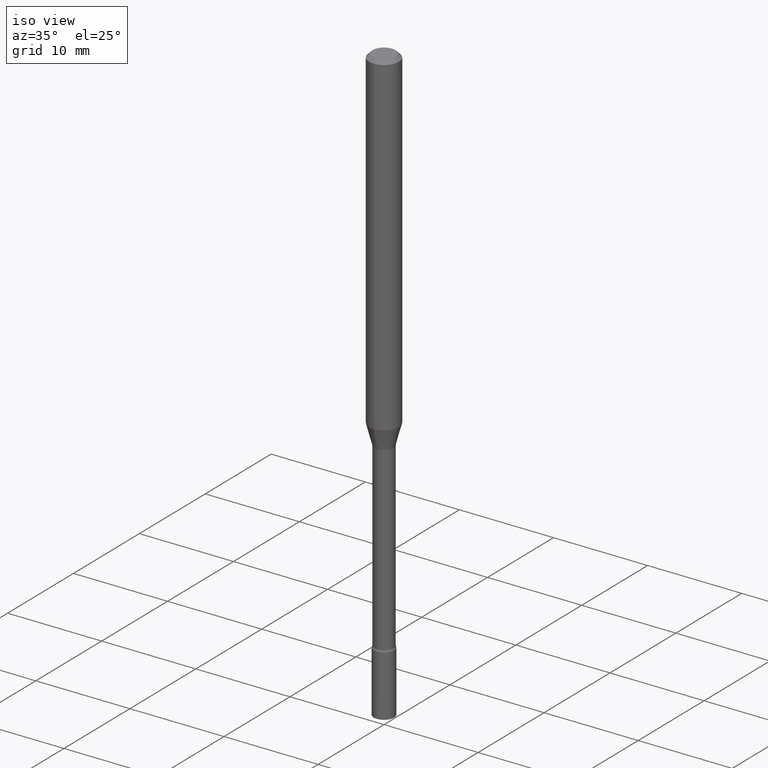
[diagram: clean part render]
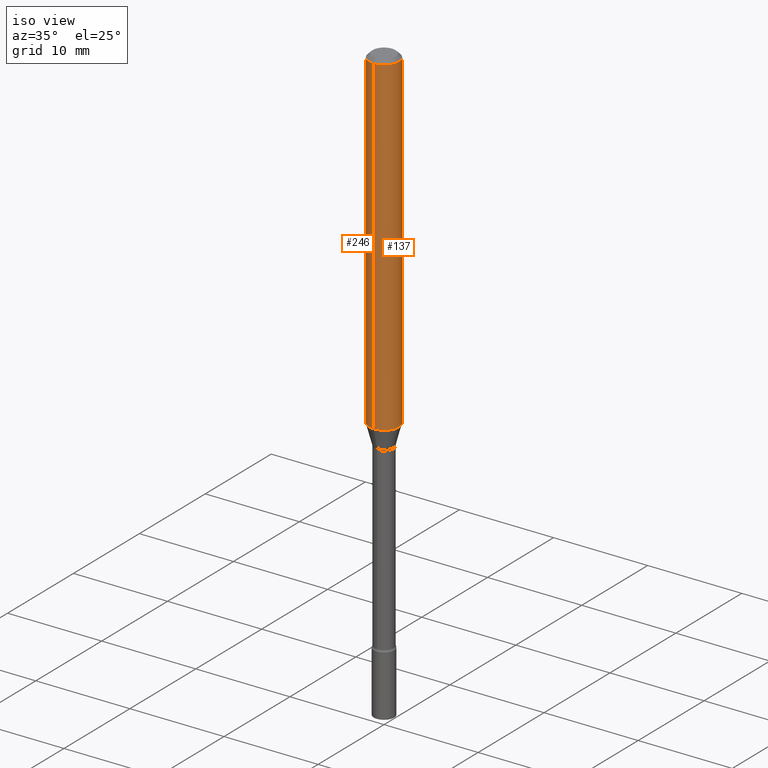
[diagram: same view with one multi-face feature highlighted, each face labeled with its STEP entity id]
A machine part, iso view. The highlighted faces form ONE feature: a constant-radius fillet chain: 2 tangent blend faces with common blend radius 1.5875 mm. The faces share edges in the B-rep.
Their STEP definitions:
[1] entity #137 (Cylinder):
#27 = ORIENTED_EDGE ( 'NONE', *, *, #212, .T. ) ;
#48 = DIRECTION ( 'NONE',  ( -6.982962677686265922E-15, -1.000000000000000000, 3.491520011697287074E-15 ) ) ;
#49 = EDGE_CURVE ( 'NONE', #461, #267, #422, .T. ) ;
#50 = CARTESIAN_POINT ( 'NONE',  ( 3.668162701613145643E-31, -5.237280017545941852E-17, -0.01500000000000003067 ) ) ;
#53 = DIRECTION ( 'NONE',  ( -2.445441801075425804E-29, 3.491520011697286679E-15, 1.000000000000000000 ) ) ;
#62 = VERTEX_POINT ( 'NONE', #202 ) ;
#69 = EDGE_CURVE ( 'NONE', #477, #62, #171, .T. ) ;
#79 = LINE ( 'NONE', #406, #128 ) ;
#117 = DIRECTION ( 'NONE',  ( -2.445441801075425524E-29, 3.491520011697287074E-15, 1.000000000000000000 ) ) ;
#127 = DIRECTION ( 'NONE',  ( -2.445441801075425524E-29, 3.491520011697287074E-15, 1.000000000000000000 ) ) ;
#128 = VECTOR ( 'NONE', #322, 39.37007874015748143 ) ;
#137 = ADVANCED_FACE ( 'NONE', ( #498 ), #245, .T. ) ;
#148 = CARTESIAN_POINT ( 'NONE',  ( 3.413450996346461593E-29, -4.873611164023822212E-15, -1.395842254289322071 ) ) ;
#171 = CIRCLE ( 'NONE', #240, 0.06250000000000000000 ) ;
#183 = ORIENTED_EDGE ( 'NONE', *, *, #69, .F. ) ;
#197 = EDGE_CURVE ( 'NONE', #461, #477, #79, .T. ) ;
#198 = CARTESIAN_POINT ( 'NONE',  ( 4.440892098500969316E-16, 0.06249999999999515665, -1.395842254289322293 ) ) ;
#202 = CARTESIAN_POINT ( 'NONE',  ( 4.440892098500969316E-16, 0.06249999999999993755, -0.01500000000000024751 ) ) ;
#211 = LINE ( 'NONE', #414, #423 ) ;
#212 = EDGE_CURVE ( 'NONE', #267, #62, #211, .T. ) ;
#220 = EDGE_LOOP ( 'NONE', ( #294, #27, #183, #258 ) ) ;
#240 = AXIS2_PLACEMENT_3D ( 'NONE', #50, #387, #298 ) ;
#245 = CYLINDRICAL_SURFACE ( 'NONE', #436, 0.06250000000000000000 ) ;
#258 = ORIENTED_EDGE ( 'NONE', *, *, #197, .F. ) ;
#267 = VERTEX_POINT ( 'NONE', #198 ) ;
#294 = ORIENTED_EDGE ( 'NONE', *, *, #49, .T. ) ;
#298 = DIRECTION ( 'NONE',  ( -6.982962677686265922E-15, -1.000000000000000000, 3.483106191921935554E-15 ) ) ;
#304 = CARTESIAN_POINT ( 'NONE',  ( -4.364351673553912750E-16, -0.06250000000000005551, -0.01499999999999981209 ) ) ;
#322 = DIRECTION ( 'NONE',  ( -2.445441801075425804E-29, 3.491520011697286679E-15, 1.000000000000000000 ) ) ;
#387 = DIRECTION ( 'NONE',  ( -2.445441801075425524E-29, 3.491520011697287074E-15, 1.000000000000000000 ) ) ;
#406 = CARTESIAN_POINT ( 'NONE',  ( -4.364351673553916201E-16, -0.06250000000000000000, 2.182200007310804421E-16 ) ) ;
#412 = CARTESIAN_POINT ( 'NONE',  ( 0.000000000000000000, 0.000000000000000000, 0.000000000000000000 ) ) ;
#414 = CARTESIAN_POINT ( 'NONE',  ( 4.440892098500625669E-16, 0.06250000000000000000, -2.182200007310804421E-16 ) ) ;
#422 = CIRCLE ( 'NONE', #491, 0.06250000000000000000 ) ;
#423 = VECTOR ( 'NONE', #53, 39.37007874015748143 ) ;
#436 = AXIS2_PLACEMENT_3D ( 'NONE', #412, #127, #48 ) ;
#455 = CARTESIAN_POINT ( 'NONE',  ( -4.364351673553572060E-16, -0.06250000000000484335, -1.395842254289321849 ) ) ;
#461 = VERTEX_POINT ( 'NONE', #455 ) ;
#477 = VERTEX_POINT ( 'NONE', #304 ) ;
#490 = DIRECTION ( 'NONE',  ( -6.982962677686265922E-15, -1.000000000000000000, 4.370956789862821150E-15 ) ) ;
#491 = AXIS2_PLACEMENT_3D ( 'NONE', #148, #117, #490 ) ;
#498 = FACE_OUTER_BOUND ( 'NONE', #220, .T. ) ;
[2] entity #246 (Cylinder):
#22 = EDGE_LOOP ( 'NONE', ( #500, #385, #173, #140 ) ) ;
#40 = CARTESIAN_POINT ( 'NONE',  ( 3.668162701613145643E-31, -5.237280017545941852E-17, -0.01500000000000003067 ) ) ;
#53 = DIRECTION ( 'NONE',  ( -2.445441801075425804E-29, 3.491520011697286679E-15, 1.000000000000000000 ) ) ;
#62 = VERTEX_POINT ( 'NONE', #202 ) ;
#79 = LINE ( 'NONE', #406, #128 ) ;
#121 = CIRCLE ( 'NONE', #383, 0.06250000000000000000 ) ;
#128 = VECTOR ( 'NONE', #322, 39.37007874015748143 ) ;
#132 = AXIS2_PLACEMENT_3D ( 'NONE', #40, #444, #499 ) ;
#140 = ORIENTED_EDGE ( 'NONE', *, *, #370, .F. ) ;
#172 = AXIS2_PLACEMENT_3D ( 'NONE', #203, #369, #489 ) ;
#173 = ORIENTED_EDGE ( 'NONE', *, *, #197, .T. ) ;
#178 = CARTESIAN_POINT ( 'NONE',  ( 3.413450996346461593E-29, -4.873611164023822212E-15, -1.395842254289322071 ) ) ;
#197 = EDGE_CURVE ( 'NONE', #461, #477, #79, .T. ) ;
#198 = CARTESIAN_POINT ( 'NONE',  ( 4.440892098500969316E-16, 0.06249999999999515665, -1.395842254289322293 ) ) ;
#202 = CARTESIAN_POINT ( 'NONE',  ( 4.440892098500969316E-16, 0.06249999999999993755, -0.01500000000000024751 ) ) ;
#203 = CARTESIAN_POINT ( 'NONE',  ( 0.000000000000000000, 0.000000000000000000, 0.000000000000000000 ) ) ;
#211 = LINE ( 'NONE', #414, #423 ) ;
#212 = EDGE_CURVE ( 'NONE', #267, #62, #211, .T. ) ;
#230 = CYLINDRICAL_SURFACE ( 'NONE', #172, 0.06250000000000000000 ) ;
#246 = ADVANCED_FACE ( 'NONE', ( #486 ), #230, .T. ) ;
#267 = VERTEX_POINT ( 'NONE', #198 ) ;
#290 = DIRECTION ( 'NONE',  ( -2.445441801075425524E-29, 3.491520011697287074E-15, 1.000000000000000000 ) ) ;
#304 = CARTESIAN_POINT ( 'NONE',  ( -4.364351673553912750E-16, -0.06250000000000005551, -0.01499999999999981209 ) ) ;
#322 = DIRECTION ( 'NONE',  ( -2.445441801075425804E-29, 3.491520011697286679E-15, 1.000000000000000000 ) ) ;
#369 = DIRECTION ( 'NONE',  ( -2.445441801075425524E-29, 3.491520011697287074E-15, 1.000000000000000000 ) ) ;
#370 = EDGE_CURVE ( 'NONE', #62, #477, #463, .T. ) ;
#383 = AXIS2_PLACEMENT_3D ( 'NONE', #178, #290, #503 ) ;
#385 = ORIENTED_EDGE ( 'NONE', *, *, #389, .T. ) ;
#389 = EDGE_CURVE ( 'NONE', #267, #461, #121, .T. ) ;
#406 = CARTESIAN_POINT ( 'NONE',  ( -4.364351673553916201E-16, -0.06250000000000000000, 2.182200007310804421E-16 ) ) ;
#414 = CARTESIAN_POINT ( 'NONE',  ( 4.440892098500625669E-16, 0.06250000000000000000, -2.182200007310804421E-16 ) ) ;
#423 = VECTOR ( 'NONE', #53, 39.37007874015748143 ) ;
#444 = DIRECTION ( 'NONE',  ( -2.445441801075425524E-29, 3.491520011697287074E-15, 1.000000000000000000 ) ) ;
#455 = CARTESIAN_POINT ( 'NONE',  ( -4.364351673553572060E-16, -0.06250000000000484335, -1.395842254289321849 ) ) ;
#461 = VERTEX_POINT ( 'NONE', #455 ) ;
#463 = CIRCLE ( 'NONE', #132, 0.06250000000000000000 ) ;
#477 = VERTEX_POINT ( 'NONE', #304 ) ;
#486 = FACE_OUTER_BOUND ( 'NONE', #22, .T. ) ;
#489 = DIRECTION ( 'NONE',  ( -6.982962677686265922E-15, -1.000000000000000000, 3.491520011697287074E-15 ) ) ;
#499 = DIRECTION ( 'NONE',  ( -6.982962677686265922E-15, -1.000000000000000000, 3.483106191921935554E-15 ) ) ;
#500 = ORIENTED_EDGE ( 'NONE', *, *, #212, .F. ) ;
#503 = DIRECTION ( 'NONE',  ( -6.982962677686265922E-15, -1.000000000000000000, 4.370956789862821150E-15 ) ) ;